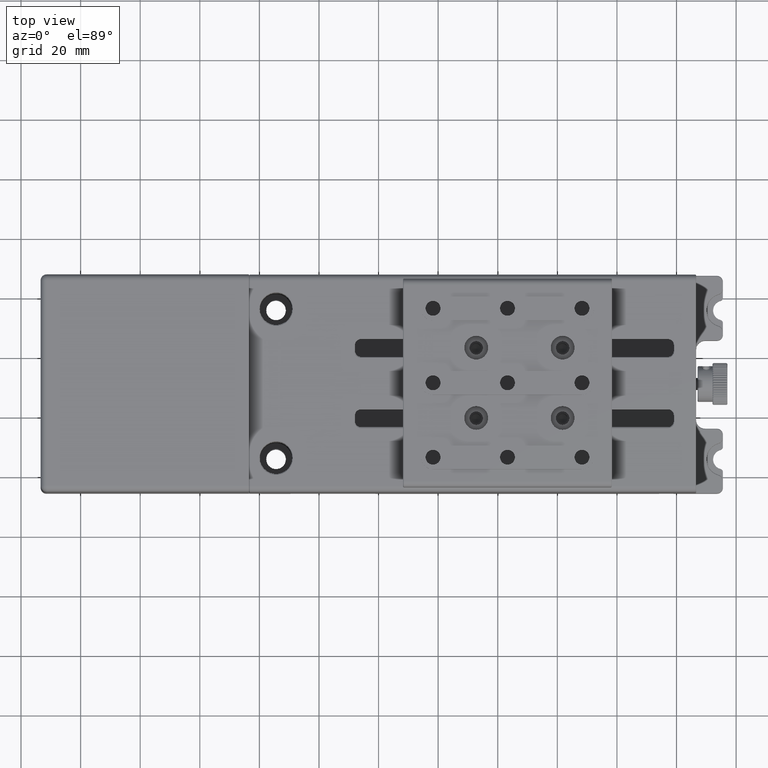
[diagram: clean part render]
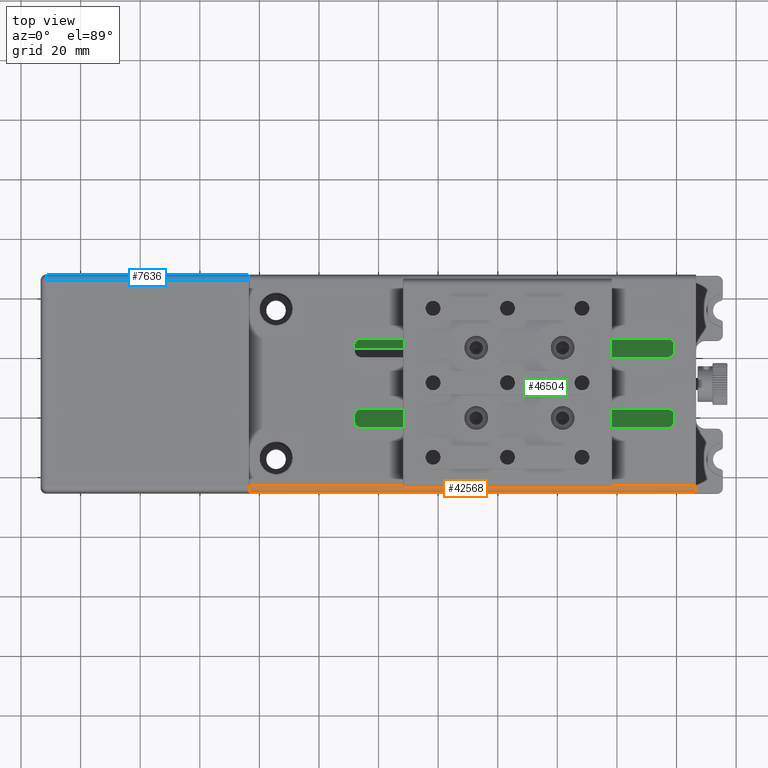
[diagram: same view with three faces highlighted in distinct colors, each labeled with its STEP entity id]
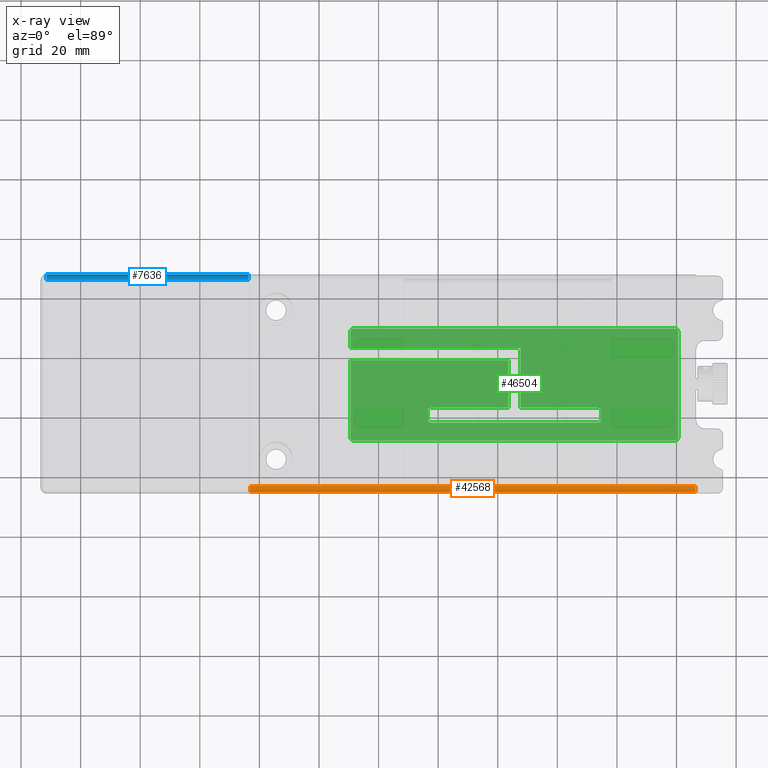
[diagram: x-ray of the same camera — body ghosted, the three highlighted faces saturated]
A machine part, top view with three faces highlighted in distinct colors.
The next image is the same camera in x-ray (body ghosted, the three faces saturated) — at least one of them is partly hidden behind the body in this view.
Their STEP definitions:

[orange] entity #42568 — the highlighted cylindrical surface (edge-blend (fillet) strip) has radius 2 mm, axis along (-1, 0, 0).
#2336 = FACE_OUTER_BOUND ( 'NONE', #35990, .T. ) ;
#3645 = ORIENTED_EDGE ( 'NONE', *, *, #42789, .F. ) ;
#4181 = AXIS2_PLACEMENT_3D ( 'NONE', #47334, #36298, #24511 ) ;
#4871 = LINE ( 'NONE', #27408, #41967 ) ;
#6001 = CARTESIAN_POINT ( 'NONE',  ( -83.22525998140230286, -43.46919745025279980, 30.00000000000000000 ) ) ;
#6946 = DIRECTION ( 'NONE',  ( 1.000000000000000000, -2.220446049250315053E-16, 0.000000000000000000 ) ) ;
#7684 = DIRECTION ( 'NONE',  ( 0.000000000000000000, 0.000000000000000000, -1.000000000000000000 ) ) ;
#9249 = CIRCLE ( 'NONE', #39921, 1.999999999999998224 ) ;
#9365 = ORIENTED_EDGE ( 'NONE', *, *, #59482, .F. ) ;
#13785 = CYLINDRICAL_SURFACE ( 'NONE', #4181, 1.999999999999998224 ) ;
#14434 = DIRECTION ( 'NONE',  ( 0.000000000000000000, 0.000000000000000000, 1.000000000000000000 ) ) ;
#16002 = AXIS2_PLACEMENT_3D ( 'NONE', #69634, #6946, #7684 ) ;
#17116 = DIRECTION ( 'NONE',  ( -1.000000000000000000, 2.220446049250315053E-16, 0.000000000000000000 ) ) ;
#17409 = CARTESIAN_POINT ( 'NONE',  ( 66.37474001859759198, -43.46919745025279980, 30.00000000000000000 ) ) ;
#18223 = VERTEX_POINT ( 'NONE', #17409 ) ;
#24511 = DIRECTION ( 'NONE',  ( 0.000000000000000000, 0.000000000000000000, 1.000000000000000000 ) ) ;
#27408 = CARTESIAN_POINT ( 'NONE',  ( 66.57474001859769430, -43.46919745025279980, 30.00000000000000000 ) ) ;
#30964 = EDGE_CURVE ( 'NONE', #54636, #18223, #9249, .T. ) ;
#34498 = VECTOR ( 'NONE', #17116, 1000.000000000000000 ) ;
#34814 = LINE ( 'NONE', #45142, #34498 ) ;
#35990 = EDGE_LOOP ( 'NONE', ( #3645, #60949, #9365, #60804 ) ) ;
#36298 = DIRECTION ( 'NONE',  ( -1.000000000000000000, 2.220446049250315053E-16, 0.000000000000000000 ) ) ;
#37302 = CARTESIAN_POINT ( 'NONE',  ( -83.22525998140230286, -45.46919745025279980, 28.00000000000000000 ) ) ;
#39921 = AXIS2_PLACEMENT_3D ( 'NONE', #71230, #64933, #14434 ) ;
#41766 = VERTEX_POINT ( 'NONE', #37302 ) ;
#41967 = VECTOR ( 'NONE', #49876, 1000.000000000000000 ) ;
#42568 = ADVANCED_FACE ( 'NONE', ( #2336 ), #13785, .T. ) ;
#42789 = EDGE_CURVE ( 'NONE', #61684, #18223, #4871, .T. ) ;
#45142 = CARTESIAN_POINT ( 'NONE',  ( 66.57474001859769430, -45.46919745025279980, 28.00000000000000000 ) ) ;
#45486 = CARTESIAN_POINT ( 'NONE',  ( 66.37474001859759198, -45.46919745025279980, 28.00000000000000000 ) ) ;
#47334 = CARTESIAN_POINT ( 'NONE',  ( 66.57474001859769430, -43.46919745025279980, 28.00000000000000000 ) ) ;
#49876 = DIRECTION ( 'NONE',  ( 1.000000000000000000, -2.220446049250315053E-16, 0.000000000000000000 ) ) ;
#54636 = VERTEX_POINT ( 'NONE', #45486 ) ;
#59482 = EDGE_CURVE ( 'NONE', #54636, #41766, #34814, .T. ) ;
#60804 = ORIENTED_EDGE ( 'NONE', *, *, #30964, .T. ) ;
#60949 = ORIENTED_EDGE ( 'NONE', *, *, #70102, .T. ) ;
#61684 = VERTEX_POINT ( 'NONE', #6001 ) ;
#64933 = DIRECTION ( 'NONE',  ( -1.000000000000000000, 2.220446049250315053E-16, 0.000000000000000000 ) ) ;
#67801 = CIRCLE ( 'NONE', #16002, 1.999999999999998224 ) ;
#69634 = CARTESIAN_POINT ( 'NONE',  ( -83.22525998140230286, -43.46919745025279980, 28.00000000000000000 ) ) ;
#70102 = EDGE_CURVE ( 'NONE', #61684, #41766, #67801, .T. ) ;
#71230 = CARTESIAN_POINT ( 'NONE',  ( 66.37474001859759198, -43.46919745025279980, 28.00000000000000000 ) ) ;

[blue] entity #7636 — the highlighted cylindrical surface (edge-blend (fillet) strip) has radius 2 mm, axis along (1, -0, 0).
#64 = AXIS2_PLACEMENT_3D ( 'NONE', #45411, #21201, #32637 ) ;
#441 = DIRECTION ( 'NONE',  ( 0.000000000000000000, 0.000000000000000000, 1.000000000000000000 ) ) ;
#3772 = VECTOR ( 'NONE', #17016, 1000.000000000000000 ) ;
#7138 = ORIENTED_EDGE ( 'NONE', *, *, #18860, .T. ) ;
#7636 = ADVANCED_FACE ( 'NONE', ( #63707 ), #19091, .T. ) ;
#10752 = ORIENTED_EDGE ( 'NONE', *, *, #64413, .T. ) ;
#10804 = DIRECTION ( 'NONE',  ( -1.000000000000000000, 2.220446049250315053E-16, 0.000000000000000000 ) ) ;
#16826 = CARTESIAN_POINT ( 'NONE',  ( -83.42525998140230570, 25.53080254974720020, 34.50000000000000000 ) ) ;
#16840 = VERTEX_POINT ( 'NONE', #32910 ) ;
#17016 = DIRECTION ( 'NONE',  ( 1.000000000000000000, -2.220446049250315053E-16, 0.000000000000000000 ) ) ;
#17491 = AXIS2_PLACEMENT_3D ( 'NONE', #68316, #10804, #441 ) ;
#17795 = ORIENTED_EDGE ( 'NONE', *, *, #66896, .F. ) ;
#18006 = DIRECTION ( 'NONE',  ( 0.000000000000000000, 0.000000000000000000, -1.000000000000000000 ) ) ;
#18860 = EDGE_CURVE ( 'NONE', #70419, #35239, #32811, .T. ) ;
#19091 = CYLINDRICAL_SURFACE ( 'NONE', #70982, 2.000000000000001776 ) ;
#20035 = EDGE_CURVE ( 'NONE', #70419, #70257, #33791, .T. ) ;
#21201 = DIRECTION ( 'NONE',  ( 1.000000000000000000, -2.220446049250315053E-16, 0.000000000000000000 ) ) ;
#30169 = DIRECTION ( 'NONE',  ( 1.000000000000000000, -2.220446049250315053E-16, 0.000000000000000000 ) ) ;
#32167 = LINE ( 'NONE', #61268, #3772 ) ;
#32637 = DIRECTION ( 'NONE',  ( 0.000000000000000000, 0.000000000000000000, -1.000000000000000000 ) ) ;
#32811 = CIRCLE ( 'NONE', #17491, 2.000000000000001776 ) ;
#32910 = CARTESIAN_POINT ( 'NONE',  ( -151.4252599814024904, 27.53080254974724994, 32.50000000000000000 ) ) ;
#33791 = LINE ( 'NONE', #16826, #50582 ) ;
#35239 = VERTEX_POINT ( 'NONE', #38594 ) ;
#38594 = CARTESIAN_POINT ( 'NONE',  ( -83.62525998140229433, 27.53080254974720020, 32.50000000000000000 ) ) ;
#41353 = CIRCLE ( 'NONE', #64, 2.000000000000001776 ) ;
#45411 = CARTESIAN_POINT ( 'NONE',  ( -151.4252599814024904, 25.53080254974725349, 32.50000000000000000 ) ) ;
#50582 = VECTOR ( 'NONE', #56629, 1000.000000000000000 ) ;
#51133 = CARTESIAN_POINT ( 'NONE',  ( -83.62525998140229433, 25.53080254974720020, 34.50000000000000000 ) ) ;
#54842 = CARTESIAN_POINT ( 'NONE',  ( -151.4252599814024904, 25.53080254974725349, 34.50000000000000000 ) ) ;
#56536 = ORIENTED_EDGE ( 'NONE', *, *, #20035, .F. ) ;
#56629 = DIRECTION ( 'NONE',  ( -1.000000000000000000, 2.220446049250315053E-16, 0.000000000000000000 ) ) ;
#56908 = EDGE_LOOP ( 'NONE', ( #56536, #7138, #17795, #10752 ) ) ;
#58544 = CARTESIAN_POINT ( 'NONE',  ( -83.42525998140230570, 25.53080254974720020, 32.50000000000000000 ) ) ;
#61268 = CARTESIAN_POINT ( 'NONE',  ( -83.42525998140230570, 27.53080254974720020, 32.50000000000000000 ) ) ;
#63707 = FACE_OUTER_BOUND ( 'NONE', #56908, .T. ) ;
#64413 = EDGE_CURVE ( 'NONE', #16840, #70257, #41353, .T. ) ;
#66896 = EDGE_CURVE ( 'NONE', #16840, #35239, #32167, .T. ) ;
#68316 = CARTESIAN_POINT ( 'NONE',  ( -83.62525998140229433, 25.53080254974720020, 32.50000000000000000 ) ) ;
#70257 = VERTEX_POINT ( 'NONE', #54842 ) ;
#70419 = VERTEX_POINT ( 'NONE', #51133 ) ;
#70982 = AXIS2_PLACEMENT_3D ( 'NONE', #58544, #30169, #18006 ) ;

[green] entity #46504 — the highlighted planar face has unit normal (0, 0, 1).
#138 = LINE ( 'NONE', #39672, #63854 ) ;
#139 = EDGE_CURVE ( 'NONE', #21706, #11679, #33945, .T. ) ;
#836 = DIRECTION ( 'NONE',  ( 0.000000000000000000, -1.000000000000000000, 0.000000000000000000 ) ) ;
#876 = EDGE_CURVE ( 'NONE', #19248, #58405, #60202, .T. ) ;
#1686 = DIRECTION ( 'NONE',  ( 1.000000000000000000, 0.000000000000000000, 0.000000000000000000 ) ) ;
#1835 = CIRCLE ( 'NONE', #46650, 1.000000000000000888 ) ;
#1918 = DIRECTION ( 'NONE',  ( 0.000000000000000000, 0.000000000000000000, 1.000000000000000000 ) ) ;
#2132 = AXIS2_PLACEMENT_3D ( 'NONE', #69194, #58141, #1686 ) ;
#2371 = CARTESIAN_POINT ( 'NONE',  ( -48.42525998140230570, -26.76919745025279695, 3.000000000000000000 ) ) ;
#2669 = DIRECTION ( 'NONE',  ( -1.000000000000000000, -2.392722035830079958E-16, 0.000000000000000000 ) ) ;
#2692 = CARTESIAN_POINT ( 'NONE',  ( -49.42525998140229859, 3.230802549747195052, 3.000000000000000000 ) ) ;
#3467 = AXIS2_PLACEMENT_3D ( 'NONE', #2371, #24894, #62901 ) ;
#3521 = EDGE_CURVE ( 'NONE', #69348, #16923, #48905, .T. ) ;
#4834 = DIRECTION ( 'NONE',  ( 0.000000000000000000, 0.000000000000000000, -1.000000000000000000 ) ) ;
#5006 = ORIENTED_EDGE ( 'NONE', *, *, #62413, .F. ) ;
#5128 = EDGE_CURVE ( 'NONE', #35614, #64791, #15279, .T. ) ;
#5168 = ORIENTED_EDGE ( 'NONE', *, *, #3521, .F. ) ;
#5200 = ORIENTED_EDGE ( 'NONE', *, *, #139, .T. ) ;
#5470 = DIRECTION ( 'NONE',  ( 1.000000000000000000, 0.000000000000000000, 0.000000000000000000 ) ) ;
#5733 = CIRCLE ( 'NONE', #66809, 1.000000000000000888 ) ;
#5775 = CARTESIAN_POINT ( 'NONE',  ( 60.57474001859770141, -27.76919745025280051, 3.000000000000000000 ) ) ;
#6079 = VECTOR ( 'NONE', #71502, 1000.000000000000000 ) ;
#6763 = CARTESIAN_POINT ( 'NONE',  ( -23.42525998140234833, -16.76919745025280051, 3.000000000000000000 ) ) ;
#6898 = DIRECTION ( 'NONE',  ( 1.000000000000000000, 0.000000000000000000, 0.000000000000000000 ) ) ;
#7410 = VECTOR ( 'NONE', #60578, 1000.000000000000000 ) ;
#8577 = CARTESIAN_POINT ( 'NONE',  ( 34.57474001859765167, -16.76919745025280051, 3.000000000000000000 ) ) ;
#8954 = VERTEX_POINT ( 'NONE', #37527 ) ;
#9525 = LINE ( 'NONE', #54528, #6079 ) ;
#11193 = FACE_OUTER_BOUND ( 'NONE', #36846, .T. ) ;
#11322 = LINE ( 'NONE', #5775, #54795 ) ;
#11596 = ORIENTED_EDGE ( 'NONE', *, *, #27961, .F. ) ;
#11679 = VERTEX_POINT ( 'NONE', #26423 ) ;
#11972 = DIRECTION ( 'NONE',  ( 0.000000000000000000, 1.000000000000000000, 0.000000000000000000 ) ) ;
#14137 = EDGE_CURVE ( 'NONE', #44848, #66455, #20721, .T. ) ;
#14181 = ORIENTED_EDGE ( 'NONE', *, *, #48780, .T. ) ;
#14237 = AXIS2_PLACEMENT_3D ( 'NONE', #42713, #65180, #63740 ) ;
#14557 = ORIENTED_EDGE ( 'NONE', *, *, #42113, .F. ) ;
#15279 = CIRCLE ( 'NONE', #3467, 1.000000000000000888 ) ;
#15418 = ORIENTED_EDGE ( 'NONE', *, *, #24309, .T. ) ;
#15584 = CARTESIAN_POINT ( 'NONE',  ( 7.574740018597680091, -16.76919745025280051, 3.000000000000000000 ) ) ;
#15952 = CARTESIAN_POINT ( 'NONE',  ( 60.57474001859770141, 8.830802549747209795, 3.000000000000000000 ) ) ;
#16193 = DIRECTION ( 'NONE',  ( -1.000000000000000000, 0.000000000000000000, 0.000000000000000000 ) ) ;
#16383 = CARTESIAN_POINT ( 'NONE',  ( -23.42525998140234833, -17.76919745025280051, 3.000000000000000000 ) ) ;
#16923 = VERTEX_POINT ( 'NONE', #41367 ) ;
#17288 = ORIENTED_EDGE ( 'NONE', *, *, #22118, .T. ) ;
#17814 = CARTESIAN_POINT ( 'NONE',  ( -48.42525998140230570, 9.830802549747209795, 3.000000000000000000 ) ) ;
#17880 = LINE ( 'NONE', #55892, #20150 ) ;
#18343 = CARTESIAN_POINT ( 'NONE',  ( -83.42525998140230570, -27.76919745025280051, 3.000000000000000000 ) ) ;
#19248 = VERTEX_POINT ( 'NONE', #72332 ) ;
#19741 = CARTESIAN_POINT ( 'NONE',  ( -49.42525998140229859, -0.7691974502528070579, 3.000000000000000000 ) ) ;
#20007 = ORIENTED_EDGE ( 'NONE', *, *, #20940, .F. ) ;
#20150 = VECTOR ( 'NONE', #11972, 1000.000000000000000 ) ;
#20267 = DIRECTION ( 'NONE',  ( 0.000000000000000000, 1.000000000000000000, 0.000000000000000000 ) ) ;
#20523 = CARTESIAN_POINT ( 'NONE',  ( -153.4252599814024904, -0.7691974502528170499, 3.000000000000000000 ) ) ;
#20721 = CIRCLE ( 'NONE', #56088, 1.000000000000000888 ) ;
#20940 = EDGE_CURVE ( 'NONE', #58405, #51982, #72255, .T. ) ;
#21053 = CARTESIAN_POINT ( 'NONE',  ( 34.57474001859765167, -17.76919745025280051, 3.000000000000000000 ) ) ;
#21706 = VERTEX_POINT ( 'NONE', #16383 ) ;
#22118 = EDGE_CURVE ( 'NONE', #22878, #45023, #60620, .T. ) ;
#22628 = CARTESIAN_POINT ( 'NONE',  ( -153.4252599814024904, 26.03080254974719665, 3.000000000000000000 ) ) ;
#22878 = VERTEX_POINT ( 'NONE', #68883 ) ;
#23337 = CARTESIAN_POINT ( 'NONE',  ( -83.42525998140230570, 9.830802549747209795, 3.000000000000000000 ) ) ;
#24309 = EDGE_CURVE ( 'NONE', #28029, #47276, #1835, .T. ) ;
#24481 = LINE ( 'NONE', #8577, #33018 ) ;
#24894 = DIRECTION ( 'NONE',  ( 0.000000000000000000, 0.000000000000000000, 1.000000000000000000 ) ) ;
#25737 = ORIENTED_EDGE ( 'NONE', *, *, #53525, .T. ) ;
#26423 = CARTESIAN_POINT ( 'NONE',  ( -22.42525998140230215, -16.76919745025280051, 3.000000000000000000 ) ) ;
#26440 = DIRECTION ( 'NONE',  ( 1.000000000000000000, 1.196361017915039732E-16, 0.000000000000000000 ) ) ;
#26703 = LINE ( 'NONE', #66117, #58692 ) ;
#27961 = EDGE_CURVE ( 'NONE', #8954, #19248, #138, .T. ) ;
#28029 = VERTEX_POINT ( 'NONE', #51791 ) ;
#28679 = DIRECTION ( 'NONE',  ( 0.000000000000000000, -1.000000000000000000, 0.000000000000000000 ) ) ;
#29072 = VECTOR ( 'NONE', #66906, 1000.000000000000000 ) ;
#29268 = ORIENTED_EDGE ( 'NONE', *, *, #876, .F. ) ;
#29273 = LINE ( 'NONE', #6763, #48168 ) ;
#29727 = VERTEX_POINT ( 'NONE', #21053 ) ;
#30042 = CARTESIAN_POINT ( 'NONE',  ( 33.57474001859765167, -17.76919745025280051, 3.000000000000000000 ) ) ;
#30124 = AXIS2_PLACEMENT_3D ( 'NONE', #30042, #31120, #52879 ) ;
#30495 = EDGE_CURVE ( 'NONE', #35614, #69348, #26703, .T. ) ;
#31120 = DIRECTION ( 'NONE',  ( 0.000000000000000000, 0.000000000000000000, -1.000000000000000000 ) ) ;
#31232 = CARTESIAN_POINT ( 'NONE',  ( -48.42525998140230570, -27.76919745025280051, 3.000000000000000000 ) ) ;
#31339 = LINE ( 'NONE', #60459, #54024 ) ;
#32178 = CARTESIAN_POINT ( 'NONE',  ( 33.57474001859765167, -20.76919745025280051, 3.000000000000000000 ) ) ;
#32489 = CARTESIAN_POINT ( 'NONE',  ( 59.57474001859760193, 9.830802549747209795, 3.000000000000000000 ) ) ;
#33018 = VECTOR ( 'NONE', #2669, 1000.000000000000000 ) ;
#33413 = DIRECTION ( 'NONE',  ( 0.000000000000000000, 0.000000000000000000, -1.000000000000000000 ) ) ;
#33530 = CARTESIAN_POINT ( 'NONE',  ( 59.57474001859770141, -26.76919745025279695, 3.000000000000000000 ) ) ;
#33945 = CIRCLE ( 'NONE', #2132, 1.000000000000000888 ) ;
#34199 = EDGE_CURVE ( 'NONE', #51982, #44617, #17880, .T. ) ;
#34235 = ORIENTED_EDGE ( 'NONE', *, *, #70800, .F. ) ;
#34622 = ORIENTED_EDGE ( 'NONE', *, *, #35808, .T. ) ;
#34952 = EDGE_CURVE ( 'NONE', #44848, #45023, #9525, .T. ) ;
#35234 = CARTESIAN_POINT ( 'NONE',  ( -49.42525998140229859, -26.76919745025279695, 3.000000000000000000 ) ) ;
#35614 = VERTEX_POINT ( 'NONE', #35234 ) ;
#35748 = ORIENTED_EDGE ( 'NONE', *, *, #42611, .T. ) ;
#35808 = EDGE_CURVE ( 'NONE', #41762, #57988, #61341, .T. ) ;
#36676 = CARTESIAN_POINT ( 'NONE',  ( 33.57474001859765167, -21.76919745025279695, 3.000000000000000000 ) ) ;
#36846 = EDGE_LOOP ( 'NONE', ( #44596, #15418, #14557, #25737, #34622, #14181, #69249, #20007, #29268, #11596, #35748, #5006, #17288, #39173, #62919, #65067, #5200, #39754, #34235, #5168, #72885, #50990 ) ) ;
#37427 = CARTESIAN_POINT ( 'NONE',  ( -23.42525998140234833, -20.76919745025280051, 3.000000000000000000 ) ) ;
#37527 = CARTESIAN_POINT ( 'NONE',  ( 33.57474001859765167, -16.76919745025280051, 3.000000000000000000 ) ) ;
#39173 = ORIENTED_EDGE ( 'NONE', *, *, #34952, .F. ) ;
#39672 = CARTESIAN_POINT ( 'NONE',  ( 34.57474001859765167, -16.76919745025280051, 3.000000000000000000 ) ) ;
#39754 = ORIENTED_EDGE ( 'NONE', *, *, #55754, .F. ) ;
#41367 = CARTESIAN_POINT ( 'NONE',  ( 3.574740018597674762, -0.7691974502527999524, 3.000000000000000000 ) ) ;
#41762 = VERTEX_POINT ( 'NONE', #32489 ) ;
#41839 = EDGE_CURVE ( 'NONE', #64791, #28029, #66757, .T. ) ;
#42113 = EDGE_CURVE ( 'NONE', #71169, #47276, #11322, .T. ) ;
#42611 = EDGE_CURVE ( 'NONE', #8954, #29727, #63059, .T. ) ;
#42713 = CARTESIAN_POINT ( 'NONE',  ( -48.42525998140230570, 8.830802549747209795, 3.000000000000000000 ) ) ;
#43751 = CARTESIAN_POINT ( 'NONE',  ( 3.574740018597674762, -16.76919745025280051, 3.000000000000000000 ) ) ;
#44048 = PLANE ( 'NONE',  #55195 ) ;
#44596 = ORIENTED_EDGE ( 'NONE', *, *, #41839, .T. ) ;
#44617 = VERTEX_POINT ( 'NONE', #69309 ) ;
#44848 = VERTEX_POINT ( 'NONE', #62240 ) ;
#45023 = VERTEX_POINT ( 'NONE', #36676 ) ;
#45555 = CARTESIAN_POINT ( 'NONE',  ( -22.42525998140230215, -20.76919745025280051, 3.000000000000000000 ) ) ;
#45880 = DIRECTION ( 'NONE',  ( -1.000000000000000000, -2.392722035830079958E-16, 0.000000000000000000 ) ) ;
#46504 = ADVANCED_FACE ( 'NONE', ( #11193 ), #44048, .T. ) ;
#46650 = AXIS2_PLACEMENT_3D ( 'NONE', #33530, #60088, #5470 ) ;
#46682 = CARTESIAN_POINT ( 'NONE',  ( 60.57474001859770141, -26.76919745025279695, 3.000000000000000000 ) ) ;
#47274 = DIRECTION ( 'NONE',  ( 1.000000000000000000, 0.000000000000000000, 0.000000000000000000 ) ) ;
#47276 = VERTEX_POINT ( 'NONE', #46682 ) ;
#48168 = VECTOR ( 'NONE', #836, 1000.000000000000000 ) ;
#48780 = EDGE_CURVE ( 'NONE', #57988, #44617, #70778, .T. ) ;
#48905 = LINE ( 'NONE', #20523, #56500 ) ;
#50349 = DIRECTION ( 'NONE',  ( 1.000000000000000000, 0.000000000000000000, 0.000000000000000000 ) ) ;
#50990 = ORIENTED_EDGE ( 'NONE', *, *, #5128, .T. ) ;
#51791 = CARTESIAN_POINT ( 'NONE',  ( 59.57474001859770141, -27.76919745025280051, 3.000000000000000000 ) ) ;
#51982 = VERTEX_POINT ( 'NONE', #2692 ) ;
#52879 = DIRECTION ( 'NONE',  ( 1.000000000000000000, 0.000000000000000000, 0.000000000000000000 ) ) ;
#53525 = EDGE_CURVE ( 'NONE', #71169, #41762, #5733, .T. ) ;
#54024 = VECTOR ( 'NONE', #20267, 1000.000000000000000 ) ;
#54528 = CARTESIAN_POINT ( 'NONE',  ( 34.57474001859765167, -21.76919745025279695, 3.000000000000000000 ) ) ;
#54795 = VECTOR ( 'NONE', #28679, 1000.000000000000000 ) ;
#55195 = AXIS2_PLACEMENT_3D ( 'NONE', #22628, #67629, #60645 ) ;
#55754 = EDGE_CURVE ( 'NONE', #61140, #11679, #24481, .T. ) ;
#55892 = CARTESIAN_POINT ( 'NONE',  ( -49.42525998140229859, 9.830802549747209795, 3.000000000000000000 ) ) ;
#56088 = AXIS2_PLACEMENT_3D ( 'NONE', #45555, #33413, #50349 ) ;
#56500 = VECTOR ( 'NONE', #26440, 1000.000000000000000 ) ;
#57069 = VECTOR ( 'NONE', #6898, 1000.000000000000000 ) ;
#57988 = VERTEX_POINT ( 'NONE', #17814 ) ;
#58141 = DIRECTION ( 'NONE',  ( 0.000000000000000000, 0.000000000000000000, -1.000000000000000000 ) ) ;
#58405 = VERTEX_POINT ( 'NONE', #60079 ) ;
#58692 = VECTOR ( 'NONE', #70573, 1000.000000000000000 ) ;
#60079 = CARTESIAN_POINT ( 'NONE',  ( 7.574740018597699631, 3.230802549747199937, 3.000000000000000000 ) ) ;
#60088 = DIRECTION ( 'NONE',  ( 0.000000000000000000, 0.000000000000000000, 1.000000000000000000 ) ) ;
#60202 = LINE ( 'NONE', #15584, #7410 ) ;
#60459 = CARTESIAN_POINT ( 'NONE',  ( 34.57474001859765167, -16.76919745025280051, 3.000000000000000000 ) ) ;
#60468 = VECTOR ( 'NONE', #16193, 1000.000000000000000 ) ;
#60578 = DIRECTION ( 'NONE',  ( 1.387778780781446070E-15, 1.000000000000000000, 0.000000000000000000 ) ) ;
#60620 = CIRCLE ( 'NONE', #66500, 1.000000000000000888 ) ;
#60645 = DIRECTION ( 'NONE',  ( 1.000000000000000000, 0.000000000000000000, 0.000000000000000000 ) ) ;
#61021 = LINE ( 'NONE', #72823, #29072 ) ;
#61140 = VERTEX_POINT ( 'NONE', #43751 ) ;
#61280 = DIRECTION ( 'NONE',  ( 1.000000000000000000, 0.000000000000000000, 0.000000000000000000 ) ) ;
#61341 = LINE ( 'NONE', #23337, #61583 ) ;
#61583 = VECTOR ( 'NONE', #68323, 1000.000000000000000 ) ;
#62240 = CARTESIAN_POINT ( 'NONE',  ( -22.42525998140230215, -21.76919745025279695, 3.000000000000000000 ) ) ;
#62263 = CARTESIAN_POINT ( 'NONE',  ( 7.574740018597699631, 3.230802549747199937, 3.000000000000000000 ) ) ;
#62413 = EDGE_CURVE ( 'NONE', #22878, #29727, #31339, .T. ) ;
#62901 = DIRECTION ( 'NONE',  ( 1.000000000000000000, 0.000000000000000000, 0.000000000000000000 ) ) ;
#62919 = ORIENTED_EDGE ( 'NONE', *, *, #14137, .T. ) ;
#62925 = EDGE_CURVE ( 'NONE', #21706, #66455, #29273, .T. ) ;
#63059 = CIRCLE ( 'NONE', #30124, 1.000000000000000888 ) ;
#63740 = DIRECTION ( 'NONE',  ( 1.000000000000000000, 0.000000000000000000, 0.000000000000000000 ) ) ;
#63854 = VECTOR ( 'NONE', #45880, 1000.000000000000000 ) ;
#64791 = VERTEX_POINT ( 'NONE', #31232 ) ;
#65067 = ORIENTED_EDGE ( 'NONE', *, *, #62925, .F. ) ;
#65180 = DIRECTION ( 'NONE',  ( 0.000000000000000000, 0.000000000000000000, 1.000000000000000000 ) ) ;
#66117 = CARTESIAN_POINT ( 'NONE',  ( -49.42525998140229859, 9.830802549747209795, 3.000000000000000000 ) ) ;
#66455 = VERTEX_POINT ( 'NONE', #37427 ) ;
#66500 = AXIS2_PLACEMENT_3D ( 'NONE', #32178, #4834, #61280 ) ;
#66757 = LINE ( 'NONE', #18343, #57069 ) ;
#66809 = AXIS2_PLACEMENT_3D ( 'NONE', #69419, #1918, #47274 ) ;
#66906 = DIRECTION ( 'NONE',  ( 0.000000000000000000, -1.000000000000000000, 0.000000000000000000 ) ) ;
#67629 = DIRECTION ( 'NONE',  ( 0.000000000000000000, 0.000000000000000000, 1.000000000000000000 ) ) ;
#68323 = DIRECTION ( 'NONE',  ( -1.000000000000000000, 0.000000000000000000, 0.000000000000000000 ) ) ;
#68883 = CARTESIAN_POINT ( 'NONE',  ( 34.57474001859765167, -20.76919745025280051, 3.000000000000000000 ) ) ;
#69194 = CARTESIAN_POINT ( 'NONE',  ( -22.42525998140230215, -17.76919745025280051, 3.000000000000000000 ) ) ;
#69249 = ORIENTED_EDGE ( 'NONE', *, *, #34199, .F. ) ;
#69309 = CARTESIAN_POINT ( 'NONE',  ( -49.42525998140229859, 8.830802549747209795, 3.000000000000000000 ) ) ;
#69348 = VERTEX_POINT ( 'NONE', #19741 ) ;
#69419 = CARTESIAN_POINT ( 'NONE',  ( 59.57474001859770141, 8.830802549747209795, 3.000000000000000000 ) ) ;
#70573 = DIRECTION ( 'NONE',  ( 0.000000000000000000, 1.000000000000000000, 0.000000000000000000 ) ) ;
#70778 = CIRCLE ( 'NONE', #14237, 1.000000000000000888 ) ;
#70800 = EDGE_CURVE ( 'NONE', #16923, #61140, #61021, .T. ) ;
#71169 = VERTEX_POINT ( 'NONE', #15952 ) ;
#71502 = DIRECTION ( 'NONE',  ( 1.000000000000000000, 1.196361017915039732E-16, 0.000000000000000000 ) ) ;
#72255 = LINE ( 'NONE', #62263, #60468 ) ;
#72332 = CARTESIAN_POINT ( 'NONE',  ( 7.574740018597680091, -16.76919745025280051, 3.000000000000000000 ) ) ;
#72823 = CARTESIAN_POINT ( 'NONE',  ( 3.574740018597674762, -16.76919745025280051, 3.000000000000000000 ) ) ;
#72885 = ORIENTED_EDGE ( 'NONE', *, *, #30495, .F. ) ;